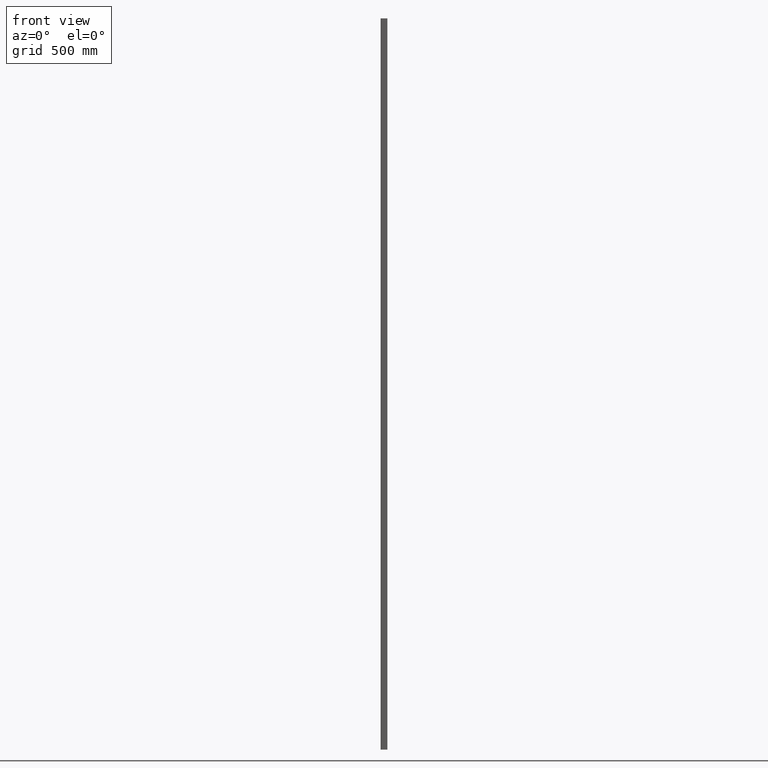
[diagram: clean part render]
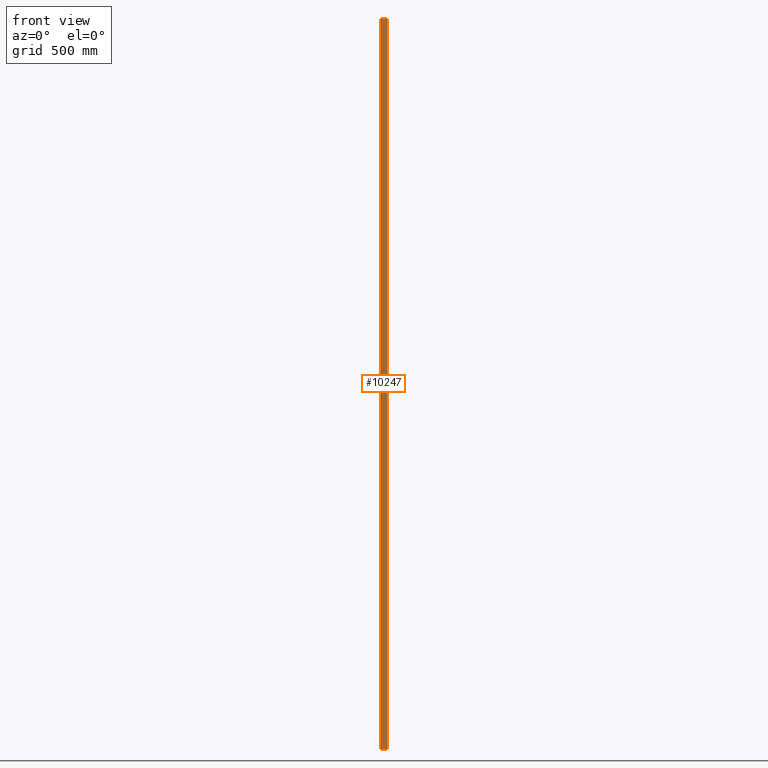
[diagram: same view with one face highlighted and labeled with its STEP entity id]
A machine part, front view. The second image highlights one B-rep face of the part: STEP entity #10247.
In plain terms, the highlighted planar face has unit normal (0, 1, -0).
Its self-contained STEP definition (entity closure, byte-faithful):
#141 = VECTOR ( 'NONE', #8222, 1000.000000000000000 ) ;
#1802 = EDGE_LOOP ( 'NONE', ( #3216, #11549, #9220, #6775 ) ) ;
#2510 = VERTEX_POINT ( 'NONE', #12373 ) ;
#2601 = CARTESIAN_POINT ( 'NONE',  ( -12.00000000000000178, 24.00000000000000000, -1500.000000000000000 ) ) ;
#2604 = EDGE_CURVE ( 'NONE', #8325, #9796, #3773, .T. ) ;
#2881 = LINE ( 'NONE', #2919, #141 ) ;
#2919 = CARTESIAN_POINT ( 'NONE',  ( -12.00000000000000178, 24.00000000000000000, 1500.000000000000000 ) ) ;
#3216 = ORIENTED_EDGE ( 'NONE', *, *, #4899, .T. ) ;
#3368 = PLANE ( 'NONE',  #12251 ) ;
#3773 = LINE ( 'NONE', #12977, #9744 ) ;
#4793 = DIRECTION ( 'NONE',  ( -0.000000000000000000, -0.000000000000000000, -1.000000000000000000 ) ) ;
#4834 = VECTOR ( 'NONE', #11763, 1000.000000000000000 ) ;
#4899 = EDGE_CURVE ( 'NONE', #2510, #9796, #11165, .T. ) ;
#5461 = CARTESIAN_POINT ( 'NONE',  ( -12.00000000000000178, 24.00000000000000000, 1500.000000000000000 ) ) ;
#5601 = DIRECTION ( 'NONE',  ( -1.000000000000000000, 1.445602896647339163E-16, 0.000000000000000000 ) ) ;
#5710 = DIRECTION ( 'NONE',  ( 1.000000000000000000, -1.445602896647339163E-16, 0.000000000000000000 ) ) ;
#5805 = CARTESIAN_POINT ( 'NONE',  ( 11.99999999999999822, 23.99999999999999645, 1500.000000000000000 ) ) ;
#6323 = EDGE_CURVE ( 'NONE', #12154, #8325, #8529, .T. ) ;
#6597 = FACE_OUTER_BOUND ( 'NONE', #1802, .T. ) ;
#6770 = CARTESIAN_POINT ( 'NONE',  ( -12.00000000000000178, 24.00000000000000000, 1500.000000000000000 ) ) ;
#6775 = ORIENTED_EDGE ( 'NONE', *, *, #9590, .T. ) ;
#7488 = CARTESIAN_POINT ( 'NONE',  ( 11.99999999999999822, 23.99999999999999645, -1500.000000000000000 ) ) ;
#8222 = DIRECTION ( 'NONE',  ( -0.000000000000000000, -0.000000000000000000, -1.000000000000000000 ) ) ;
#8325 = VERTEX_POINT ( 'NONE', #5805 ) ;
#8529 = LINE ( 'NONE', #11025, #12901 ) ;
#9220 = ORIENTED_EDGE ( 'NONE', *, *, #6323, .F. ) ;
#9590 = EDGE_CURVE ( 'NONE', #12154, #2510, #2881, .T. ) ;
#9744 = VECTOR ( 'NONE', #4793, 1000.000000000000000 ) ;
#9796 = VERTEX_POINT ( 'NONE', #7488 ) ;
#10247 = ADVANCED_FACE ( 'NONE', ( #6597 ), #3368, .F. ) ;
#11025 = CARTESIAN_POINT ( 'NONE',  ( -12.00000000000000178, 24.00000000000000000, 1500.000000000000000 ) ) ;
#11165 = LINE ( 'NONE', #2601, #4834 ) ;
#11549 = ORIENTED_EDGE ( 'NONE', *, *, #2604, .F. ) ;
#11763 = DIRECTION ( 'NONE',  ( 1.000000000000000000, -1.445602896647339163E-16, 0.000000000000000000 ) ) ;
#12154 = VERTEX_POINT ( 'NONE', #6770 ) ;
#12251 = AXIS2_PLACEMENT_3D ( 'NONE', #5461, #12653, #5601 ) ;
#12373 = CARTESIAN_POINT ( 'NONE',  ( -12.00000000000000178, 24.00000000000000000, -1500.000000000000000 ) ) ;
#12653 = DIRECTION ( 'NONE',  ( 1.445602896647339163E-16, 1.000000000000000000, -0.000000000000000000 ) ) ;
#12901 = VECTOR ( 'NONE', #5710, 1000.000000000000000 ) ;
#12977 = CARTESIAN_POINT ( 'NONE',  ( 11.99999999999999822, 23.99999999999999645, 1500.000000000000000 ) ) ;